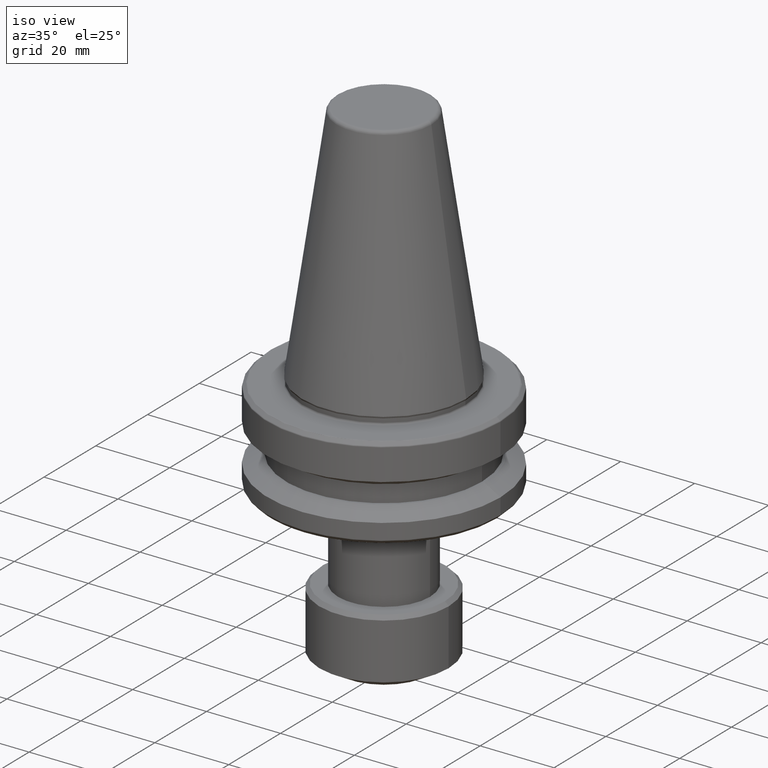
[diagram: clean part render]
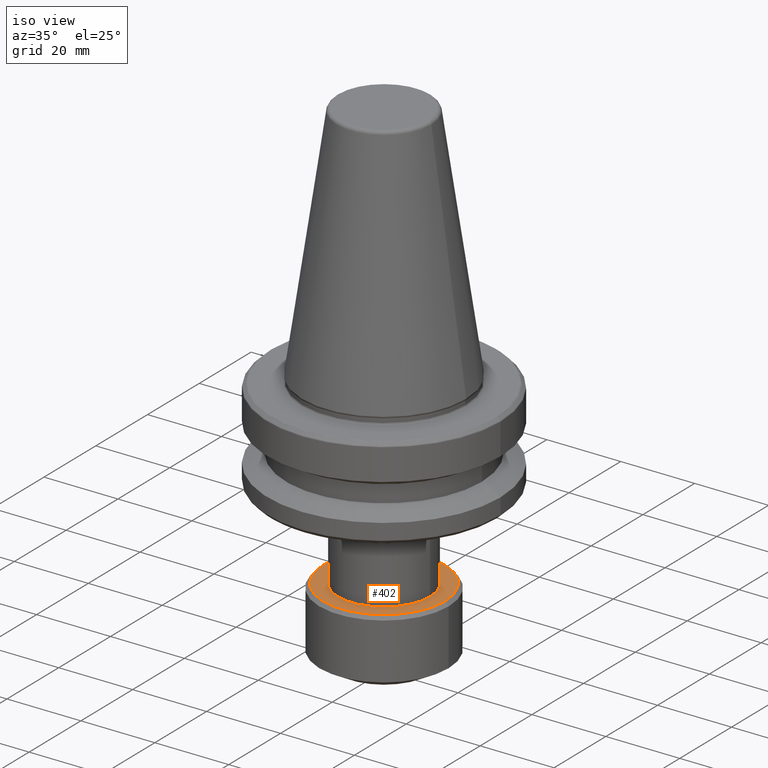
[diagram: same view with one face highlighted and labeled with its STEP entity id]
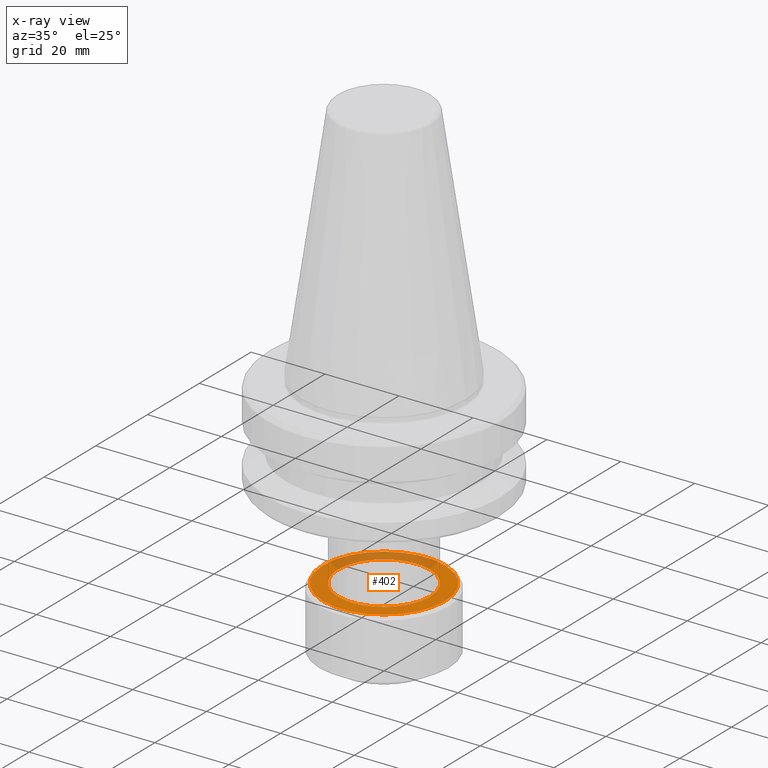
[diagram: x-ray of the same camera — body ghosted, the highlighted face saturated]
A machine part, iso view. The second image highlights one B-rep face of the part: STEP entity #402.
The next image is the same camera in x-ray: the body ghosted, the highlighted face saturated — about 28% of this face is hidden behind the body in this view.
In plain terms, the highlighted planar face has unit normal (0, 0, -1).
Its self-contained STEP definition (entity closure, byte-faithful):
#34 = AXIS2_PLACEMENT_3D ( 'NONE', #821, #1280, #478 ) ;
#227 = DIRECTION ( 'NONE',  ( 1.000000000000000000, 0.0000000000000000000, 0.0000000000000000000 ) ) ;
#270 = EDGE_LOOP ( 'NONE', ( #1347, #472 ) ) ;
#351 = VERTEX_POINT ( 'NONE', #1477 ) ;
#360 = DIRECTION ( 'NONE',  ( 0.0000000000000000000, 0.0000000000000000000, -1.000000000000000000 ) ) ;
#365 = EDGE_LOOP ( 'NONE', ( #918, #900 ) ) ;
#370 = PLANE ( 'NONE',  #34 ) ;
#379 = AXIS2_PLACEMENT_3D ( 'NONE', #970, #872, #986 ) ;
#402 = ADVANCED_FACE ( 'NONE', ( #1447, #514 ), #370, .F. ) ;
#437 = AXIS2_PLACEMENT_3D ( 'NONE', #1104, #360, #1207 ) ;
#438 = VERTEX_POINT ( 'NONE', #691 ) ;
#472 = ORIENTED_EDGE ( 'NONE', *, *, #911, .T. ) ;
#478 = DIRECTION ( 'NONE',  ( -1.000000000000000000, 0.0000000000000000000, -0.0000000000000000000 ) ) ;
#514 = FACE_BOUND ( 'NONE', #365, .T. ) ;
#533 = CIRCLE ( 'NONE', #379, 16.49901631902815100 ) ;
#580 = EDGE_CURVE ( 'NONE', #989, #1285, #753, .T. ) ;
#603 = DIRECTION ( 'NONE',  ( -0.0000000000000000000, -0.0000000000000000000, 1.000000000000000000 ) ) ;
#605 = CIRCLE ( 'NONE', #996, 16.49901631902815100 ) ;
#691 = CARTESIAN_POINT ( 'NONE',  ( -16.49901631902815100, 0.0000000000000000000, -51.00000000000000700 ) ) ;
#753 = CIRCLE ( 'NONE', #1481, 12.44999999999999800 ) ;
#821 = CARTESIAN_POINT ( 'NONE',  ( 0.0000000000000000000, 0.0000000000000000000, -51.00000000000000700 ) ) ;
#831 = DIRECTION ( 'NONE',  ( 0.0000000000000000000, 0.0000000000000000000, -1.000000000000000000 ) ) ;
#844 = DIRECTION ( 'NONE',  ( -1.000000000000000000, 0.0000000000000000000, 0.0000000000000000000 ) ) ;
#872 = DIRECTION ( 'NONE',  ( -0.0000000000000000000, -0.0000000000000000000, 1.000000000000000000 ) ) ;
#900 = ORIENTED_EDGE ( 'NONE', *, *, #580, .T. ) ;
#911 = EDGE_CURVE ( 'NONE', #351, #438, #605, .T. ) ;
#918 = ORIENTED_EDGE ( 'NONE', *, *, #1259, .T. ) ;
#943 = CARTESIAN_POINT ( 'NONE',  ( 0.0000000000000000000, 0.0000000000000000000, -51.00000000000000700 ) ) ;
#965 = CARTESIAN_POINT ( 'NONE',  ( -12.44999999999999800, 1.524685264938454400E-015, -51.00000000000000700 ) ) ;
#970 = CARTESIAN_POINT ( 'NONE',  ( 0.0000000000000000000, 0.0000000000000000000, -51.00000000000000700 ) ) ;
#974 = CARTESIAN_POINT ( 'NONE',  ( 0.0000000000000000000, 0.0000000000000000000, -51.00000000000000700 ) ) ;
#986 = DIRECTION ( 'NONE',  ( 1.000000000000000000, 0.0000000000000000000, 0.0000000000000000000 ) ) ;
#989 = VERTEX_POINT ( 'NONE', #965 ) ;
#996 = AXIS2_PLACEMENT_3D ( 'NONE', #974, #603, #227 ) ;
#1025 = EDGE_CURVE ( 'NONE', #438, #351, #533, .T. ) ;
#1104 = CARTESIAN_POINT ( 'NONE',  ( 0.0000000000000000000, 0.0000000000000000000, -51.00000000000000700 ) ) ;
#1185 = CIRCLE ( 'NONE', #437, 12.44999999999999800 ) ;
#1207 = DIRECTION ( 'NONE',  ( -1.000000000000000000, 0.0000000000000000000, 0.0000000000000000000 ) ) ;
#1259 = EDGE_CURVE ( 'NONE', #1285, #989, #1185, .T. ) ;
#1280 = DIRECTION ( 'NONE',  ( 0.0000000000000000000, 0.0000000000000000000, -1.000000000000000000 ) ) ;
#1285 = VERTEX_POINT ( 'NONE', #1398 ) ;
#1347 = ORIENTED_EDGE ( 'NONE', *, *, #1025, .T. ) ;
#1398 = CARTESIAN_POINT ( 'NONE',  ( 12.44999999999999800, 0.0000000000000000000, -51.00000000000000700 ) ) ;
#1447 = FACE_OUTER_BOUND ( 'NONE', #270, .T. ) ;
#1477 = CARTESIAN_POINT ( 'NONE',  ( 16.49901631902815100, 2.081779092375144500E-015, -51.00000000000000700 ) ) ;
#1481 = AXIS2_PLACEMENT_3D ( 'NONE', #943, #831, #844 ) ;